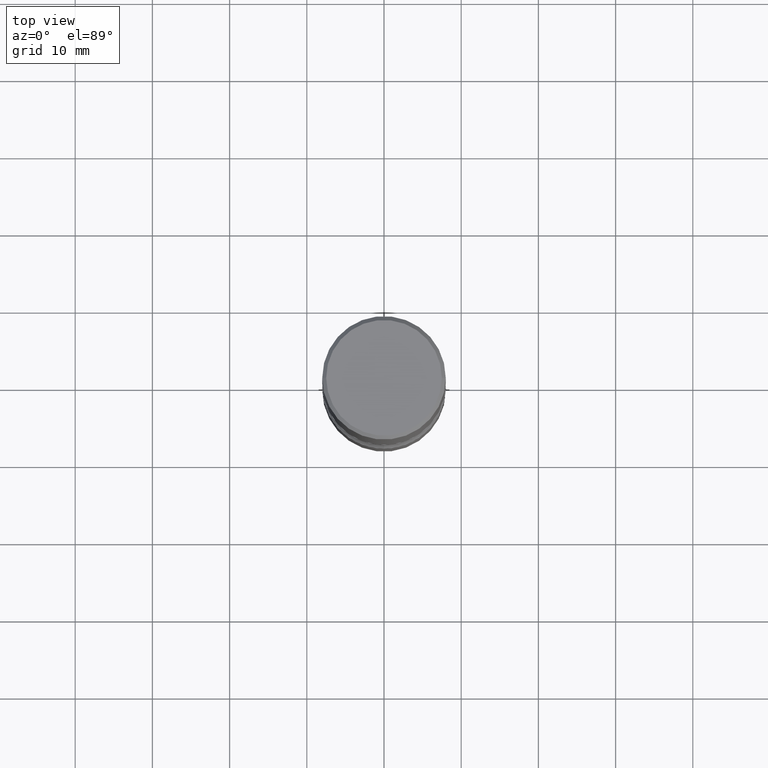
[diagram: clean part render]
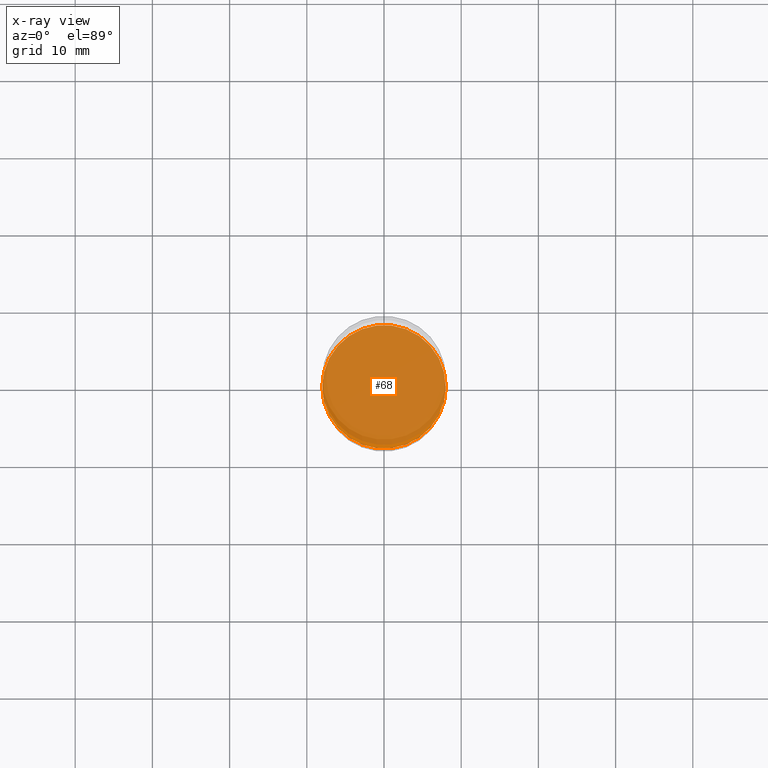
[diagram: x-ray — body ghosted, one internal face saturated and labeled with its STEP entity id]
A machine part, top view, then the same camera in x-ray: the body is ghosted and one INTERNAL B-rep face — a face not visible from any outside direction — is saturated and labeled: STEP entity #68.
In plain terms, the highlighted planar face has unit normal (0, -0, -1).
Its self-contained STEP definition (entity closure, byte-faithful):
#65 = CIRCLE ( 'NONE', #498, 0.3149500000000001743 ) ;
#68 = ADVANCED_FACE ( 'NONE', ( #354 ), #155, .F. ) ;
#71 = DIRECTION ( 'NONE',  ( 2.438088387897960049E-29, -3.491481338843145188E-15, -1.000000000000000000 ) ) ;
#117 = VERTEX_POINT ( 'NONE', #493 ) ;
#146 = VERTEX_POINT ( 'NONE', #404 ) ;
#155 = PLANE ( 'NONE',  #175 ) ;
#165 = CARTESIAN_POINT ( 'NONE',  ( 6.546764541038231284E-29, -9.347044692216987539E-15, -2.677100000000000701 ) ) ;
#175 = AXIS2_PLACEMENT_3D ( 'NONE', #454, #71, #227 ) ;
#192 = EDGE_CURVE ( 'NONE', #117, #146, #65, .T. ) ;
#202 = AXIS2_PLACEMENT_3D ( 'NONE', #165, #368, #207 ) ;
#207 = DIRECTION ( 'NONE',  ( 1.000000000000000000, -6.982962677686265922E-15, 0.000000000000000000 ) ) ;
#227 = DIRECTION ( 'NONE',  ( -1.000000000000000000, 6.982962677686265922E-15, -4.876176775795935793E-29 ) ) ;
#314 = CARTESIAN_POINT ( 'NONE',  ( 6.546764541038231284E-29, -9.347044692216987539E-15, -2.677100000000000701 ) ) ;
#352 = EDGE_LOOP ( 'NONE', ( #436, #507 ) ) ;
#354 = FACE_OUTER_BOUND ( 'NONE', #352, .T. ) ;
#355 = DIRECTION ( 'NONE',  ( 1.000000000000000000, -6.982962677686265922E-15, 0.000000000000000000 ) ) ;
#368 = DIRECTION ( 'NONE',  ( -2.445468806185136597E-29, 3.491481338843145583E-15, 1.000000000000000000 ) ) ;
#404 = CARTESIAN_POINT ( 'NONE',  ( -0.3149500000000001743, -8.621350913793515532E-15, -2.677100000000000701 ) ) ;
#436 = ORIENTED_EDGE ( 'NONE', *, *, #192, .T. ) ;
#454 = CARTESIAN_POINT ( 'NONE',  ( 3.303747517495057190E-29, -1.399122965099685515E-14, -2.677100000000000701 ) ) ;
#455 = EDGE_CURVE ( 'NONE', #146, #117, #487, .T. ) ;
#487 = CIRCLE ( 'NONE', #202, 0.3149500000000001743 ) ;
#493 = CARTESIAN_POINT ( 'NONE',  ( 0.3149500000000001743, -1.154632878755427741E-14, -2.677100000000000701 ) ) ;
#498 = AXIS2_PLACEMENT_3D ( 'NONE', #314, #525, #355 ) ;
#507 = ORIENTED_EDGE ( 'NONE', *, *, #455, .T. ) ;
#525 = DIRECTION ( 'NONE',  ( -2.445468806185136597E-29, 3.491481338843145583E-15, 1.000000000000000000 ) ) ;